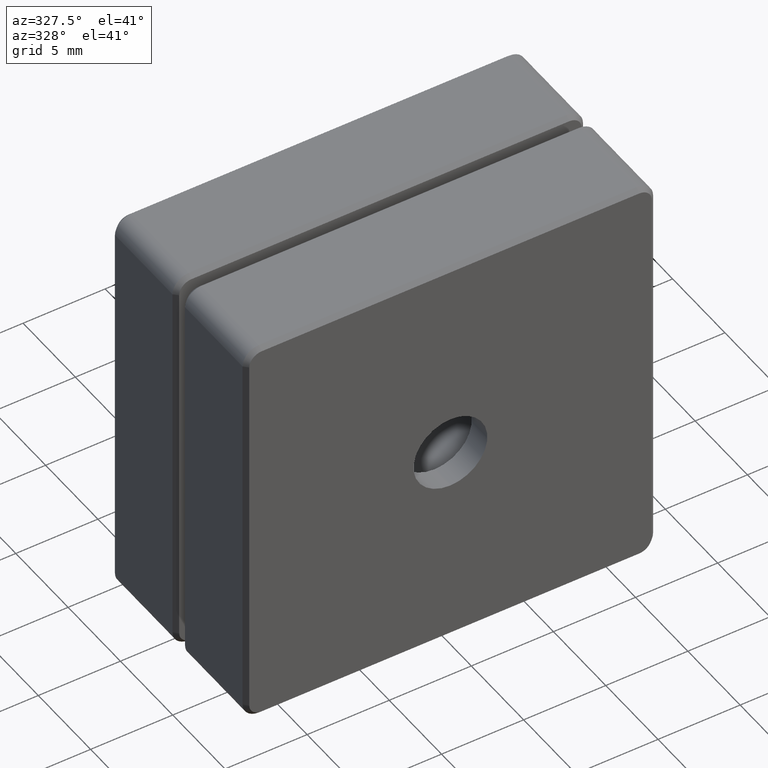
[diagram: clean part render]
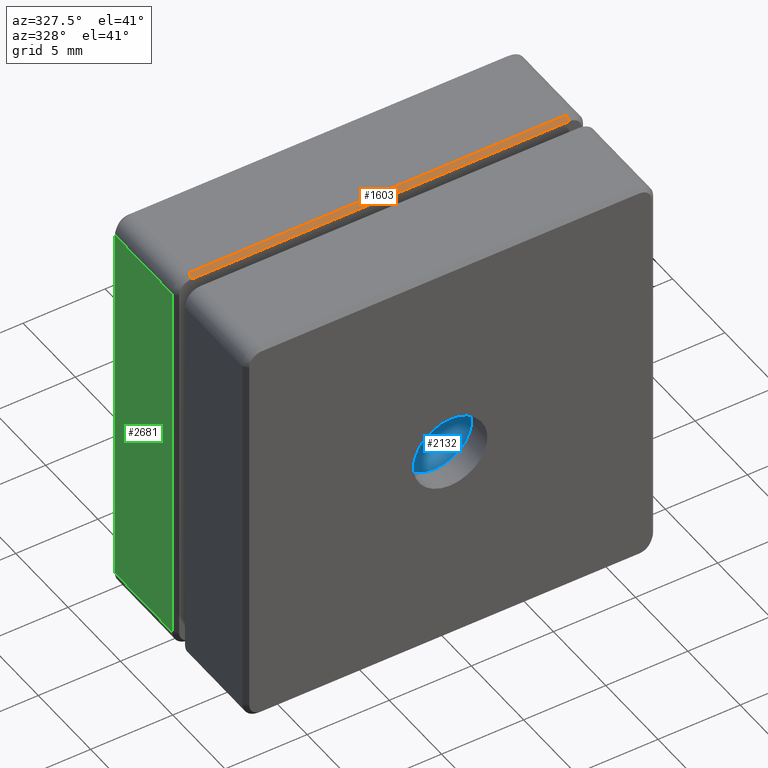
[diagram: same view with three faces highlighted in distinct colors, each labeled with its STEP entity id]
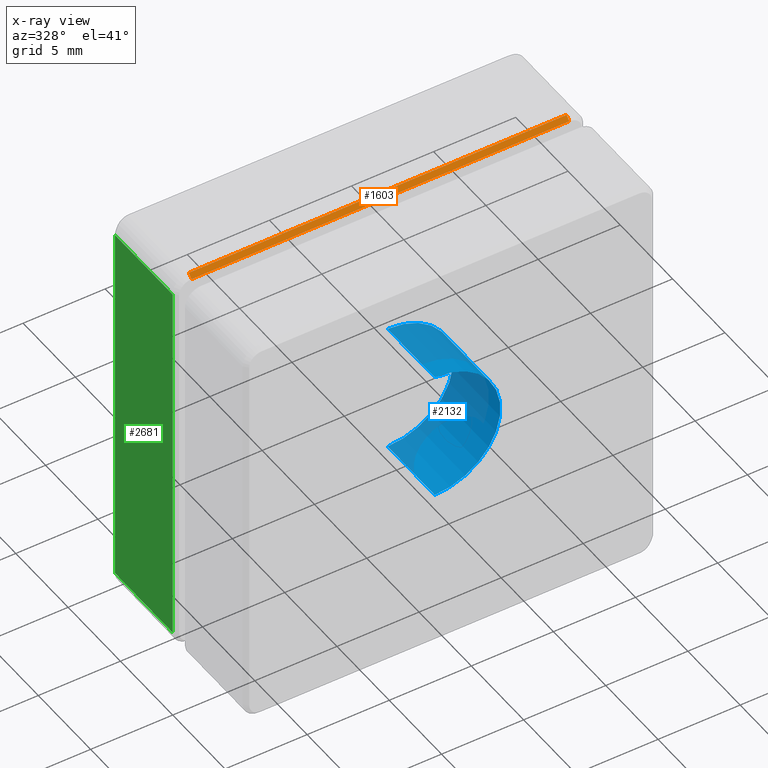
[diagram: x-ray of the same camera — body ghosted, the three highlighted faces saturated]
A machine part, auxiliary view with three faces highlighted in distinct colors.
The next image is the same camera in x-ray (body ghosted, the three faces saturated) — at least one of them is partly hidden behind the body in this view.
Their STEP definitions:

[orange] entity #1603 — the highlighted planar face has unit normal (0, -0.7071, 0.7071).
#19 = EDGE_LOOP ( 'NONE', ( #2580, #1699, #196, #1689 ) ) ;
#80 = VECTOR ( 'NONE', #2295, 999.9999999999998863 ) ;
#83 = AXIS2_PLACEMENT_3D ( 'NONE', #2421, #1656, #808 ) ;
#149 = EDGE_CURVE ( 'NONE', #2611, #2272, #1176, .T. ) ;
#196 = ORIENTED_EDGE ( 'NONE', *, *, #822, .T. ) ;
#287 = EDGE_CURVE ( 'NONE', #1247, #1977, #1966, .T. ) ;
#367 = CARTESIAN_POINT ( 'NONE',  ( -11.49999999999999112, 3.949958608817682126, 12.50000000000000533 ) ) ;
#411 = CARTESIAN_POINT ( 'NONE',  ( -11.49999999999999112, 3.699958608817714101, 12.25000000000000533 ) ) ;
#471 = VECTOR ( 'NONE', #664, 1000.000000000000000 ) ;
#554 = CARTESIAN_POINT ( 'NONE',  ( 11.50000000000000888, 3.699958608817714101, 12.25000000000000000 ) ) ;
#664 = DIRECTION ( 'NONE',  ( -1.000000000000000000, 6.706162754953179697E-19, 1.458251921993003464E-16 ) ) ;
#808 = DIRECTION ( 'NONE',  ( 1.000000000000000000, -6.706162754953179697E-19, -1.458251921993003464E-16 ) ) ;
#822 = EDGE_CURVE ( 'NONE', #1247, #2272, #1686, .T. ) ;
#903 = CARTESIAN_POINT ( 'NONE',  ( -11.49999999999999112, 3.699958608817714101, 12.25000000000000533 ) ) ;
#972 = VECTOR ( 'NONE', #2553, 1000.000000000000000 ) ;
#1107 = PLANE ( 'NONE',  #83 ) ;
#1176 = LINE ( 'NONE', #903, #471 ) ;
#1247 = VERTEX_POINT ( 'NONE', #367 ) ;
#1284 = DIRECTION ( 'NONE',  ( 2.875833895899387734E-16, 0.7071067811865457964, 0.7071067811865492381 ) ) ;
#1381 = FACE_OUTER_BOUND ( 'NONE', #19, .T. ) ;
#1481 = EDGE_CURVE ( 'NONE', #2611, #1977, #3038, .T. ) ;
#1603 = ADVANCED_FACE ( 'NONE', ( #1381 ), #1107, .T. ) ;
#1656 = DIRECTION ( 'NONE',  ( 1.026397849559807151E-16, -0.7071067811865433539, 0.7071067811865516806 ) ) ;
#1686 = LINE ( 'NONE', #3030, #80 ) ;
#1689 = ORIENTED_EDGE ( 'NONE', *, *, #149, .F. ) ;
#1699 = ORIENTED_EDGE ( 'NONE', *, *, #287, .F. ) ;
#1966 = LINE ( 'NONE', #3350, #972 ) ;
#1977 = VERTEX_POINT ( 'NONE', #3145 ) ;
#2272 = VERTEX_POINT ( 'NONE', #411 ) ;
#2295 = DIRECTION ( 'NONE',  ( -2.875833895899395130E-16, -0.7071067811865434649, -0.7071067811865516806 ) ) ;
#2421 = CARTESIAN_POINT ( 'NONE',  ( 1.644206085893377425E-14, 3.699958608817714101, 12.25000000000000178 ) ) ;
#2553 = DIRECTION ( 'NONE',  ( 1.000000000000000000, -6.706162754953179697E-19, -1.458251921993003464E-16 ) ) ;
#2580 = ORIENTED_EDGE ( 'NONE', *, *, #1481, .T. ) ;
#2611 = VERTEX_POINT ( 'NONE', #554 ) ;
#2791 = VECTOR ( 'NONE', #1284, 1000.000000000000227 ) ;
#3030 = CARTESIAN_POINT ( 'NONE',  ( -11.49999999999999112, 3.949958608817682126, 12.50000000000000533 ) ) ;
#3038 = LINE ( 'NONE', #3189, #2791 ) ;
#3145 = CARTESIAN_POINT ( 'NONE',  ( 11.50000000000000888, 3.949958608817682126, 12.49999999999999822 ) ) ;
#3189 = CARTESIAN_POINT ( 'NONE',  ( 11.50000000000000888, 3.699958608817714101, 12.25000000000000000 ) ) ;
#3350 = CARTESIAN_POINT ( 'NONE',  ( 11.50000000000000888, 3.949958608817682126, 12.49999999999999822 ) ) ;

[blue] entity #2132 — the highlighted cylindrical surface (partial cylindrical patch) has radius 4 mm, axis along (-0, 1, -0).
#30 = CARTESIAN_POINT ( 'NONE',  ( 0.0000000000000000000, 3.000000000000000000, 0.0000000000000000000 ) ) ;
#97 = CARTESIAN_POINT ( 'NONE',  ( 4.898587196589411843E-16, -1.499999999999999556, -3.999999999999999112 ) ) ;
#313 = CARTESIAN_POINT ( 'NONE',  ( 4.898587196589408884E-16, 3.000000000000000000, -3.999999999999996447 ) ) ;
#619 = CARTESIAN_POINT ( 'NONE',  ( 0.0000000000000000000, -1.499999999999999556, 0.0000000000000000000 ) ) ;
#895 = CARTESIAN_POINT ( 'NONE',  ( 4.898587196589406912E-16, 3.000000000000000000, -3.999999999999993339 ) ) ;
#920 = AXIS2_PLACEMENT_3D ( 'NONE', #30, #1679, #2419 ) ;
#936 = EDGE_LOOP ( 'NONE', ( #1443, #2507, #1084, #1949 ) ) ;
#1013 = EDGE_CURVE ( 'NONE', #1054, #3443, #1841, .T. ) ;
#1054 = VERTEX_POINT ( 'NONE', #2469 ) ;
#1084 = ORIENTED_EDGE ( 'NONE', *, *, #1013, .T. ) ;
#1150 = DIRECTION ( 'NONE',  ( 0.0000000000000000000, 0.0000000000000000000, 1.000000000000000000 ) ) ;
#1154 = AXIS2_PLACEMENT_3D ( 'NONE', #619, #2747, #1150 ) ;
#1353 = DIRECTION ( 'NONE',  ( 0.0000000000000000000, 0.0000000000000000000, 1.000000000000000000 ) ) ;
#1400 = CARTESIAN_POINT ( 'NONE',  ( 0.0000000000000000000, 3.000000000000000000, 3.999999999999996447 ) ) ;
#1443 = ORIENTED_EDGE ( 'NONE', *, *, #2146, .F. ) ;
#1510 = FACE_OUTER_BOUND ( 'NONE', #936, .T. ) ;
#1670 = VERTEX_POINT ( 'NONE', #895 ) ;
#1679 = DIRECTION ( 'NONE',  ( -0.0000000000000000000, 1.000000000000000000, -0.0000000000000000000 ) ) ;
#1841 = LINE ( 'NONE', #1400, #2882 ) ;
#1909 = CIRCLE ( 'NONE', #1154, 3.999999999999999112 ) ;
#1949 = ORIENTED_EDGE ( 'NONE', *, *, #2632, .T. ) ;
#2132 = ADVANCED_FACE ( 'NONE', ( #1510 ), #2830, .F. ) ;
#2146 = EDGE_CURVE ( 'NONE', #2278, #1670, #2452, .T. ) ;
#2240 = CIRCLE ( 'NONE', #3187, 3.999999999999993339 ) ;
#2278 = VERTEX_POINT ( 'NONE', #97 ) ;
#2419 = DIRECTION ( 'NONE',  ( 0.0000000000000000000, 0.0000000000000000000, 1.000000000000000000 ) ) ;
#2452 = LINE ( 'NONE', #313, #2706 ) ;
#2469 = CARTESIAN_POINT ( 'NONE',  ( 0.0000000000000000000, -1.499999999999999556, 3.999999999999999112 ) ) ;
#2507 = ORIENTED_EDGE ( 'NONE', *, *, #2795, .F. ) ;
#2632 = EDGE_CURVE ( 'NONE', #3443, #1670, #2240, .T. ) ;
#2706 = VECTOR ( 'NONE', #2950, 1000.000000000000000 ) ;
#2747 = DIRECTION ( 'NONE',  ( -0.0000000000000000000, 1.000000000000000000, -0.0000000000000000000 ) ) ;
#2795 = EDGE_CURVE ( 'NONE', #1054, #2278, #1909, .T. ) ;
#2830 = CYLINDRICAL_SURFACE ( 'NONE', #920, 3.999999999999996447 ) ;
#2882 = VECTOR ( 'NONE', #3018, 1000.000000000000000 ) ;
#2936 = DIRECTION ( 'NONE',  ( -0.0000000000000000000, 1.000000000000000000, -0.0000000000000000000 ) ) ;
#2946 = CARTESIAN_POINT ( 'NONE',  ( 0.0000000000000000000, 3.000000000000000000, 0.0000000000000000000 ) ) ;
#2950 = DIRECTION ( 'NONE',  ( -0.0000000000000000000, 1.000000000000000000, -0.0000000000000000000 ) ) ;
#3018 = DIRECTION ( 'NONE',  ( -0.0000000000000000000, 1.000000000000000000, -0.0000000000000000000 ) ) ;
#3132 = CARTESIAN_POINT ( 'NONE',  ( 0.0000000000000000000, 3.000000000000000000, 3.999999999999993339 ) ) ;
#3187 = AXIS2_PLACEMENT_3D ( 'NONE', #2946, #2936, #1353 ) ;
#3443 = VERTEX_POINT ( 'NONE', #3132 ) ;

[green] entity #2681 — the highlighted planar face has unit normal (1, -0, -0).
#67 = ORIENTED_EDGE ( 'NONE', *, *, #594, .T. ) ;
#74 = DIRECTION ( 'NONE',  ( 1.000000000000000000, -6.706162754953179697E-19, -2.672558355176768430E-16 ) ) ;
#100 = CARTESIAN_POINT ( 'NONE',  ( -12.49999999999999289, 9.449958608817617289, 11.50000000000000533 ) ) ;
#101 = DIRECTION ( 'NONE',  ( 6.706162754953245178E-19, 1.000000000000000000, -7.904105642296774844E-20 ) ) ;
#217 = DIRECTION ( 'NONE',  ( -2.672558355176768430E-16, -7.904105642296520862E-20, -1.000000000000000000 ) ) ;
#262 = DIRECTION ( 'NONE',  ( 2.672558355176768430E-16, 7.904105642296520862E-20, 1.000000000000000000 ) ) ;
#269 = CARTESIAN_POINT ( 'NONE',  ( -12.49999999999999467, 9.449958608817617289, -11.49999999999999645 ) ) ;
#275 = CARTESIAN_POINT ( 'NONE',  ( -12.49999999999999467, 3.699958608817714101, -12.49999999999999467 ) ) ;
#282 = LINE ( 'NONE', #2046, #2743 ) ;
#424 = CARTESIAN_POINT ( 'NONE',  ( -12.49999999999999467, 3.949958608817682126, -11.49999999999999645 ) ) ;
#464 = VECTOR ( 'NONE', #101, 1000.000000000000000 ) ;
#506 = LINE ( 'NONE', #2246, #464 ) ;
#521 = CARTESIAN_POINT ( 'NONE',  ( -12.49999999999999289, 3.949958608817682126, 11.50000000000000533 ) ) ;
#532 = ORIENTED_EDGE ( 'NONE', *, *, #933, .T. ) ;
#545 = PLANE ( 'NONE',  #1523 ) ;
#565 = VERTEX_POINT ( 'NONE', #521 ) ;
#594 = EDGE_CURVE ( 'NONE', #1627, #3285, #2208, .T. ) ;
#719 = EDGE_CURVE ( 'NONE', #565, #1657, #506, .T. ) ;
#933 = EDGE_CURVE ( 'NONE', #3285, #565, #3473, .T. ) ;
#1396 = ORIENTED_EDGE ( 'NONE', *, *, #719, .T. ) ;
#1415 = DIRECTION ( 'NONE',  ( 2.672558355176768430E-16, 7.904105642296520862E-20, 1.000000000000000000 ) ) ;
#1523 = AXIS2_PLACEMENT_3D ( 'NONE', #275, #74, #1415 ) ;
#1627 = VERTEX_POINT ( 'NONE', #269 ) ;
#1657 = VERTEX_POINT ( 'NONE', #100 ) ;
#2046 = CARTESIAN_POINT ( 'NONE',  ( -12.49999999999999467, 9.449958608817617289, -12.49999999999999467 ) ) ;
#2208 = LINE ( 'NONE', #3299, #3094 ) ;
#2246 = CARTESIAN_POINT ( 'NONE',  ( -12.49999999999999289, 3.699958608817714101, 11.50000000000000533 ) ) ;
#2323 = FACE_OUTER_BOUND ( 'NONE', #3320, .T. ) ;
#2447 = DIRECTION ( 'NONE',  ( -6.706162754953245178E-19, -1.000000000000000000, 7.904105642296774844E-20 ) ) ;
#2681 = ADVANCED_FACE ( 'NONE', ( #2323 ), #545, .F. ) ;
#2682 = CARTESIAN_POINT ( 'NONE',  ( -12.49999999999999289, 3.949958608817682126, 11.50000000000000533 ) ) ;
#2743 = VECTOR ( 'NONE', #217, 1000.000000000000000 ) ;
#2966 = EDGE_CURVE ( 'NONE', #1657, #1627, #282, .T. ) ;
#3094 = VECTOR ( 'NONE', #2447, 1000.000000000000000 ) ;
#3150 = ORIENTED_EDGE ( 'NONE', *, *, #2966, .T. ) ;
#3285 = VERTEX_POINT ( 'NONE', #424 ) ;
#3299 = CARTESIAN_POINT ( 'NONE',  ( -12.49999999999999467, 3.699958608817714101, -11.49999999999999645 ) ) ;
#3320 = EDGE_LOOP ( 'NONE', ( #1396, #3150, #67, #532 ) ) ;
#3390 = VECTOR ( 'NONE', #262, 1000.000000000000000 ) ;
#3473 = LINE ( 'NONE', #2682, #3390 ) ;